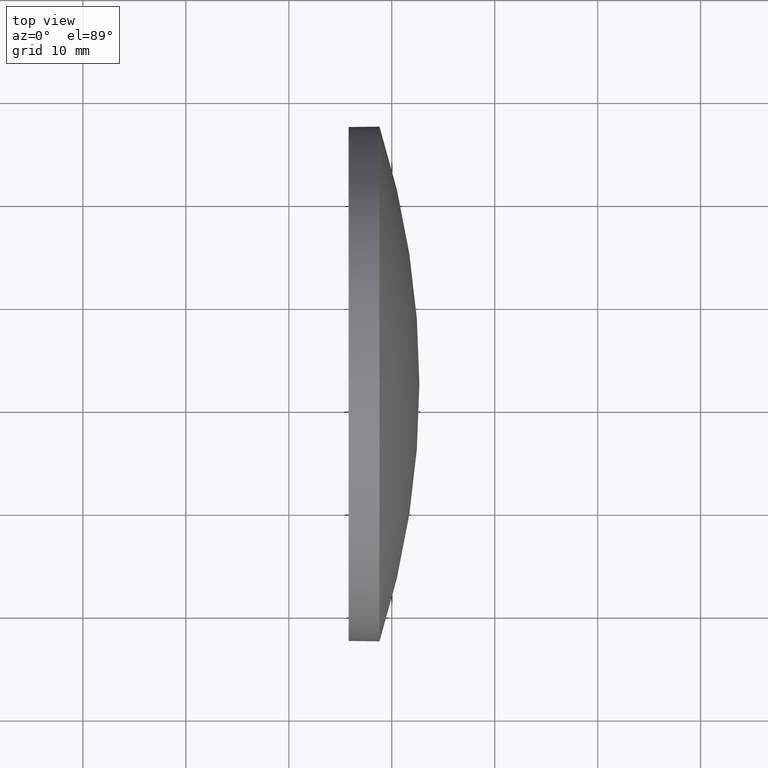
[diagram: clean part render]
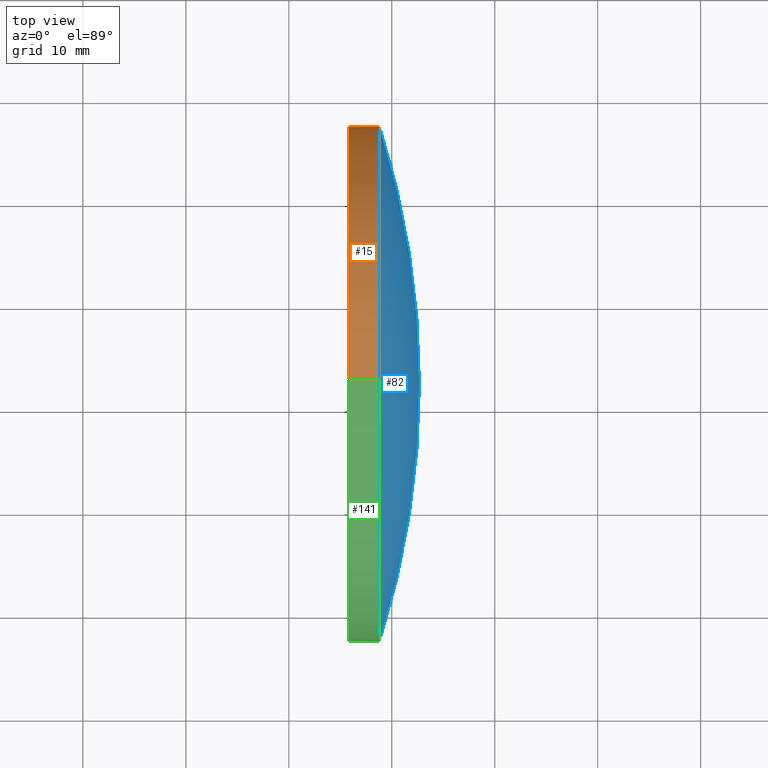
[diagram: same view with three faces highlighted in distinct colors, each labeled with its STEP entity id]
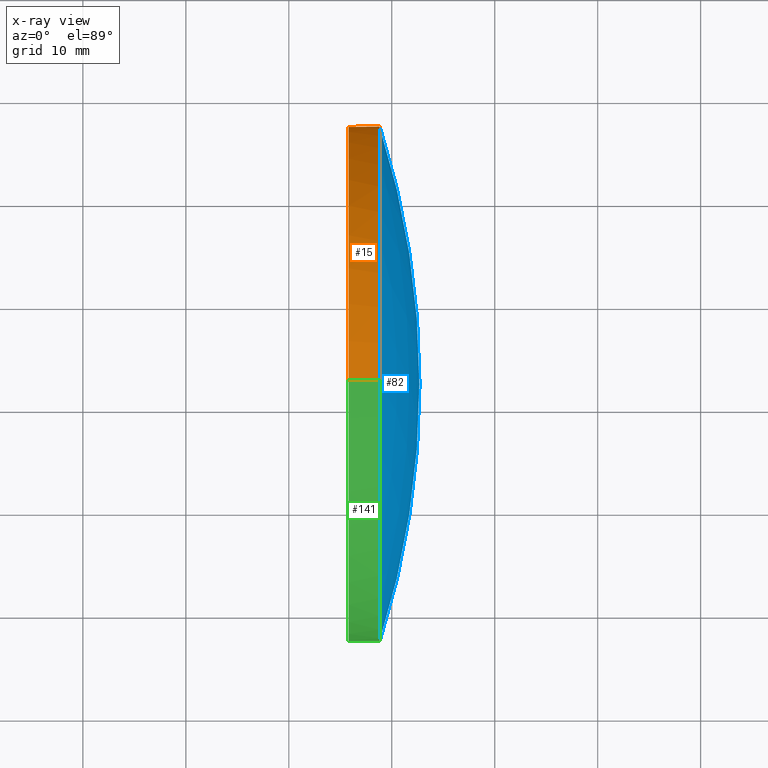
[diagram: x-ray of the same camera — body ghosted, the three highlighted faces saturated]
A machine part, top view with three faces highlighted in distinct colors.
The next image is the same camera in x-ray (body ghosted, the three faces saturated) — at least one of them is partly hidden behind the body in this view.
Their STEP definitions:

[orange] entity #15 — the highlighted cylindrical surface (partial cylindrical patch) has radius 25 mm, axis along (-1, -0, -0).
#15 = ADVANCED_FACE ( 'NONE', ( #23 ), #172, .T. ) ;
#19 = DIRECTION ( 'NONE',  ( 0.0000000000000000000, 0.0000000000000000000, 1.000000000000000000 ) ) ;
#21 = DIRECTION ( 'NONE',  ( -1.000000000000000000, -0.0000000000000000000, -0.0000000000000000000 ) ) ;
#23 = FACE_OUTER_BOUND ( 'NONE', #81, .T. ) ;
#30 = DIRECTION ( 'NONE',  ( -1.000000000000000000, -0.0000000000000000000, -0.0000000000000000000 ) ) ;
#31 = CARTESIAN_POINT ( 'NONE',  ( 418.8113751889766300, 102.3011867309653600, 0.0000000000000000000 ) ) ;
#37 = VERTEX_POINT ( 'NONE', #84 ) ;
#42 = VECTOR ( 'NONE', #56, 1000.000000000000000 ) ;
#45 = CARTESIAN_POINT ( 'NONE',  ( 415.8113751889766300, 102.3011867309653600, 24.99999999999999300 ) ) ;
#46 = DIRECTION ( 'NONE',  ( -1.000000000000000000, -0.0000000000000000000, -0.0000000000000000000 ) ) ;
#49 = CARTESIAN_POINT ( 'NONE',  ( 418.8113751889766300, 102.3011867309653600, -24.99999999999999300 ) ) ;
#51 = CIRCLE ( 'NONE', #171, 24.99999999999999300 ) ;
#56 = DIRECTION ( 'NONE',  ( -1.000000000000000000, -0.0000000000000000000, -0.0000000000000000000 ) ) ;
#57 = ORIENTED_EDGE ( 'NONE', *, *, #69, .T. ) ;
#58 = EDGE_CURVE ( 'NONE', #67, #77, #51, .T. ) ;
#65 = VERTEX_POINT ( 'NONE', #45 ) ;
#67 = VERTEX_POINT ( 'NONE', #144 ) ;
#69 = EDGE_CURVE ( 'NONE', #184, #37, #168, .T. ) ;
#70 = AXIS2_PLACEMENT_3D ( 'NONE', #177, #46, #179 ) ;
#75 = DIRECTION ( 'NONE',  ( 0.0000000000000000000, 0.0000000000000000000, 1.000000000000000000 ) ) ;
#77 = VERTEX_POINT ( 'NONE', #160 ) ;
#79 = LINE ( 'NONE', #132, #42 ) ;
#81 = EDGE_LOOP ( 'NONE', ( #126, #57, #143, #101, #83 ) ) ;
#83 = ORIENTED_EDGE ( 'NONE', *, *, #58, .T. ) ;
#84 = CARTESIAN_POINT ( 'NONE',  ( 415.8113751889766300, 102.3011867309653600, -24.99999999999999300 ) ) ;
#86 = AXIS2_PLACEMENT_3D ( 'NONE', #181, #21, #90 ) ;
#89 = DIRECTION ( 'NONE',  ( -1.000000000000000000, -0.0000000000000000000, -0.0000000000000000000 ) ) ;
#90 = DIRECTION ( 'NONE',  ( 0.0000000000000000000, 0.0000000000000000000, 1.000000000000000000 ) ) ;
#94 = CIRCLE ( 'NONE', #111, 24.99999999999999300 ) ;
#95 = EDGE_CURVE ( 'NONE', #77, #184, #94, .T. ) ;
#101 = ORIENTED_EDGE ( 'NONE', *, *, #104, .F. ) ;
#104 = EDGE_CURVE ( 'NONE', #67, #65, #79, .T. ) ;
#111 = AXIS2_PLACEMENT_3D ( 'NONE', #112, #30, #19 ) ;
#112 = CARTESIAN_POINT ( 'NONE',  ( 418.8113751889766300, 102.3011867309653600, 0.0000000000000000000 ) ) ;
#121 = EDGE_CURVE ( 'NONE', #65, #37, #155, .T. ) ;
#126 = ORIENTED_EDGE ( 'NONE', *, *, #95, .T. ) ;
#131 = CARTESIAN_POINT ( 'NONE',  ( 406.3891357517893500, 102.3011867309653600, -24.99999999999999300 ) ) ;
#132 = CARTESIAN_POINT ( 'NONE',  ( 406.3891357517893500, 102.3011867309653600, 24.99999999999999300 ) ) ;
#143 = ORIENTED_EDGE ( 'NONE', *, *, #121, .F. ) ;
#144 = CARTESIAN_POINT ( 'NONE',  ( 418.8113751889766300, 102.3011867309653600, 24.99999999999999300 ) ) ;
#155 = CIRCLE ( 'NONE', #86, 24.99999999999999300 ) ;
#157 = VECTOR ( 'NONE', #89, 1000.000000000000000 ) ;
#159 = DIRECTION ( 'NONE',  ( -1.000000000000000000, -0.0000000000000000000, -0.0000000000000000000 ) ) ;
#160 = CARTESIAN_POINT ( 'NONE',  ( 418.8113751889766300, 127.3011867309653600, 0.0000000000000000000 ) ) ;
#168 = LINE ( 'NONE', #131, #157 ) ;
#171 = AXIS2_PLACEMENT_3D ( 'NONE', #31, #159, #75 ) ;
#172 = CYLINDRICAL_SURFACE ( 'NONE', #70, 24.99999999999999300 ) ;
#177 = CARTESIAN_POINT ( 'NONE',  ( 406.3891357517893500, 102.3011867309653600, 0.0000000000000000000 ) ) ;
#179 = DIRECTION ( 'NONE',  ( 0.0000000000000000000, 0.0000000000000000000, 1.000000000000000000 ) ) ;
#181 = CARTESIAN_POINT ( 'NONE',  ( 415.8113751889766300, 102.3011867309653600, 0.0000000000000000000 ) ) ;
#184 = VERTEX_POINT ( 'NONE', #49 ) ;

[blue] entity #82 — the highlighted spherical surface has radius 82.6844 mm.
#2 = DIRECTION ( 'NONE',  ( 1.000000000000000000, 0.0000000000000000000, 0.0000000000000000000 ) ) ;
#7 = EDGE_CURVE ( 'NONE', #180, #67, #167, .T. ) ;
#10 = CARTESIAN_POINT ( 'NONE',  ( 418.8113751889766300, 77.30118673096537000, -3.061616997868381900E-015 ) ) ;
#11 = SPHERICAL_SURFACE ( 'NONE', #107, 82.68435400516783300 ) ;
#16 = AXIS2_PLACEMENT_3D ( 'NONE', #85, #71, #162 ) ;
#17 = ORIENTED_EDGE ( 'NONE', *, *, #58, .F. ) ;
#31 = CARTESIAN_POINT ( 'NONE',  ( 418.8113751889766300, 102.3011867309653600, 0.0000000000000000000 ) ) ;
#35 = CARTESIAN_POINT ( 'NONE',  ( 422.6813751889766300, 102.3011867309653400, 0.0000000000000000000 ) ) ;
#44 = FACE_OUTER_BOUND ( 'NONE', #96, .T. ) ;
#50 = DIRECTION ( 'NONE',  ( 0.0000000000000000000, 1.224646799147353200E-016, -1.000000000000000000 ) ) ;
#51 = CIRCLE ( 'NONE', #171, 24.99999999999999300 ) ;
#54 = ORIENTED_EDGE ( 'NONE', *, *, #7, .F. ) ;
#58 = EDGE_CURVE ( 'NONE', #67, #77, #51, .T. ) ;
#61 = DIRECTION ( 'NONE',  ( -0.0000000000000000000, 0.0000000000000000000, 1.000000000000000000 ) ) ;
#67 = VERTEX_POINT ( 'NONE', #144 ) ;
#71 = DIRECTION ( 'NONE',  ( -1.000000000000000000, -0.0000000000000000000, -0.0000000000000000000 ) ) ;
#72 = DIRECTION ( 'NONE',  ( -0.0000000000000000000, 0.0000000000000000000, -1.000000000000000000 ) ) ;
#74 = EDGE_CURVE ( 'NONE', #140, #77, #154, .T. ) ;
#75 = DIRECTION ( 'NONE',  ( 0.0000000000000000000, 0.0000000000000000000, 1.000000000000000000 ) ) ;
#77 = VERTEX_POINT ( 'NONE', #160 ) ;
#82 = ADVANCED_FACE ( 'NONE', ( #44 ), #11, .T. ) ;
#85 = CARTESIAN_POINT ( 'NONE',  ( 418.8113751889766300, 102.3011867309653600, 0.0000000000000000000 ) ) ;
#91 = AXIS2_PLACEMENT_3D ( 'NONE', #137, #50, #152 ) ;
#96 = EDGE_LOOP ( 'NONE', ( #170, #186, #17, #54 ) ) ;
#102 = DIRECTION ( 'NONE',  ( 0.0000000000000000000, 1.000000000000000000, 0.0000000000000000000 ) ) ;
#107 = AXIS2_PLACEMENT_3D ( 'NONE', #175, #72, #102 ) ;
#114 = CIRCLE ( 'NONE', #91, 82.68435400516783300 ) ;
#124 = EDGE_CURVE ( 'NONE', #140, #180, #114, .T. ) ;
#134 = AXIS2_PLACEMENT_3D ( 'NONE', #149, #61, #2 ) ;
#137 = CARTESIAN_POINT ( 'NONE',  ( 339.9970211838087800, 102.3011867309653400, 0.0000000000000000000 ) ) ;
#140 = VERTEX_POINT ( 'NONE', #35 ) ;
#144 = CARTESIAN_POINT ( 'NONE',  ( 418.8113751889766300, 102.3011867309653600, 24.99999999999999300 ) ) ;
#149 = CARTESIAN_POINT ( 'NONE',  ( 339.9970211838087800, 102.3011867309653400, 0.0000000000000000000 ) ) ;
#152 = DIRECTION ( 'NONE',  ( 0.0000000000000000000, 1.000000000000000000, 1.224646799147353200E-016 ) ) ;
#154 = CIRCLE ( 'NONE', #134, 82.68435400516781900 ) ;
#159 = DIRECTION ( 'NONE',  ( -1.000000000000000000, -0.0000000000000000000, -0.0000000000000000000 ) ) ;
#160 = CARTESIAN_POINT ( 'NONE',  ( 418.8113751889766300, 127.3011867309653600, 0.0000000000000000000 ) ) ;
#162 = DIRECTION ( 'NONE',  ( 0.0000000000000000000, 0.0000000000000000000, 1.000000000000000000 ) ) ;
#167 = CIRCLE ( 'NONE', #16, 24.99999999999999300 ) ;
#170 = ORIENTED_EDGE ( 'NONE', *, *, #124, .F. ) ;
#171 = AXIS2_PLACEMENT_3D ( 'NONE', #31, #159, #75 ) ;
#175 = CARTESIAN_POINT ( 'NONE',  ( 339.9970211838087800, 102.3011867309653400, 0.0000000000000000000 ) ) ;
#180 = VERTEX_POINT ( 'NONE', #10 ) ;
#186 = ORIENTED_EDGE ( 'NONE', *, *, #74, .T. ) ;

[green] entity #141 — the highlighted cylindrical surface (partial cylindrical patch) has radius 25 mm, axis along (-1, -0, -0).
#1 = ORIENTED_EDGE ( 'NONE', *, *, #69, .F. ) ;
#6 = DIRECTION ( 'NONE',  ( 0.0000000000000000000, 0.0000000000000000000, 1.000000000000000000 ) ) ;
#7 = EDGE_CURVE ( 'NONE', #180, #67, #167, .T. ) ;
#10 = CARTESIAN_POINT ( 'NONE',  ( 418.8113751889766300, 77.30118673096537000, -3.061616997868381900E-015 ) ) ;
#14 = EDGE_LOOP ( 'NONE', ( #1, #55, #98, #40, #136 ) ) ;
#16 = AXIS2_PLACEMENT_3D ( 'NONE', #85, #71, #162 ) ;
#22 = DIRECTION ( 'NONE',  ( -1.000000000000000000, -0.0000000000000000000, -0.0000000000000000000 ) ) ;
#33 = DIRECTION ( 'NONE',  ( 0.0000000000000000000, 0.0000000000000000000, 1.000000000000000000 ) ) ;
#34 = AXIS2_PLACEMENT_3D ( 'NONE', #36, #117, #64 ) ;
#36 = CARTESIAN_POINT ( 'NONE',  ( 415.8113751889766300, 102.3011867309653600, 0.0000000000000000000 ) ) ;
#37 = VERTEX_POINT ( 'NONE', #84 ) ;
#40 = ORIENTED_EDGE ( 'NONE', *, *, #104, .T. ) ;
#41 = CYLINDRICAL_SURFACE ( 'NONE', #53, 24.99999999999999300 ) ;
#42 = VECTOR ( 'NONE', #56, 1000.000000000000000 ) ;
#45 = CARTESIAN_POINT ( 'NONE',  ( 415.8113751889766300, 102.3011867309653600, 24.99999999999999300 ) ) ;
#49 = CARTESIAN_POINT ( 'NONE',  ( 418.8113751889766300, 102.3011867309653600, -24.99999999999999300 ) ) ;
#53 = AXIS2_PLACEMENT_3D ( 'NONE', #63, #22, #6 ) ;
#55 = ORIENTED_EDGE ( 'NONE', *, *, #156, .T. ) ;
#56 = DIRECTION ( 'NONE',  ( -1.000000000000000000, -0.0000000000000000000, -0.0000000000000000000 ) ) ;
#63 = CARTESIAN_POINT ( 'NONE',  ( 406.3891357517893500, 102.3011867309653600, 0.0000000000000000000 ) ) ;
#64 = DIRECTION ( 'NONE',  ( 0.0000000000000000000, 0.0000000000000000000, 1.000000000000000000 ) ) ;
#65 = VERTEX_POINT ( 'NONE', #45 ) ;
#67 = VERTEX_POINT ( 'NONE', #144 ) ;
#68 = CIRCLE ( 'NONE', #99, 24.99999999999999300 ) ;
#69 = EDGE_CURVE ( 'NONE', #184, #37, #168, .T. ) ;
#71 = DIRECTION ( 'NONE',  ( -1.000000000000000000, -0.0000000000000000000, -0.0000000000000000000 ) ) ;
#79 = LINE ( 'NONE', #132, #42 ) ;
#80 = CIRCLE ( 'NONE', #34, 24.99999999999999300 ) ;
#84 = CARTESIAN_POINT ( 'NONE',  ( 415.8113751889766300, 102.3011867309653600, -24.99999999999999300 ) ) ;
#85 = CARTESIAN_POINT ( 'NONE',  ( 418.8113751889766300, 102.3011867309653600, 0.0000000000000000000 ) ) ;
#89 = DIRECTION ( 'NONE',  ( -1.000000000000000000, -0.0000000000000000000, -0.0000000000000000000 ) ) ;
#98 = ORIENTED_EDGE ( 'NONE', *, *, #7, .T. ) ;
#99 = AXIS2_PLACEMENT_3D ( 'NONE', #178, #182, #33 ) ;
#104 = EDGE_CURVE ( 'NONE', #67, #65, #79, .T. ) ;
#117 = DIRECTION ( 'NONE',  ( -1.000000000000000000, -0.0000000000000000000, -0.0000000000000000000 ) ) ;
#131 = CARTESIAN_POINT ( 'NONE',  ( 406.3891357517893500, 102.3011867309653600, -24.99999999999999300 ) ) ;
#132 = CARTESIAN_POINT ( 'NONE',  ( 406.3891357517893500, 102.3011867309653600, 24.99999999999999300 ) ) ;
#136 = ORIENTED_EDGE ( 'NONE', *, *, #169, .F. ) ;
#141 = ADVANCED_FACE ( 'NONE', ( #148 ), #41, .T. ) ;
#144 = CARTESIAN_POINT ( 'NONE',  ( 418.8113751889766300, 102.3011867309653600, 24.99999999999999300 ) ) ;
#148 = FACE_OUTER_BOUND ( 'NONE', #14, .T. ) ;
#156 = EDGE_CURVE ( 'NONE', #184, #180, #68, .T. ) ;
#157 = VECTOR ( 'NONE', #89, 1000.000000000000000 ) ;
#162 = DIRECTION ( 'NONE',  ( 0.0000000000000000000, 0.0000000000000000000, 1.000000000000000000 ) ) ;
#167 = CIRCLE ( 'NONE', #16, 24.99999999999999300 ) ;
#168 = LINE ( 'NONE', #131, #157 ) ;
#169 = EDGE_CURVE ( 'NONE', #37, #65, #80, .T. ) ;
#178 = CARTESIAN_POINT ( 'NONE',  ( 418.8113751889766300, 102.3011867309653600, 0.0000000000000000000 ) ) ;
#180 = VERTEX_POINT ( 'NONE', #10 ) ;
#182 = DIRECTION ( 'NONE',  ( -1.000000000000000000, -0.0000000000000000000, -0.0000000000000000000 ) ) ;
#184 = VERTEX_POINT ( 'NONE', #49 ) ;